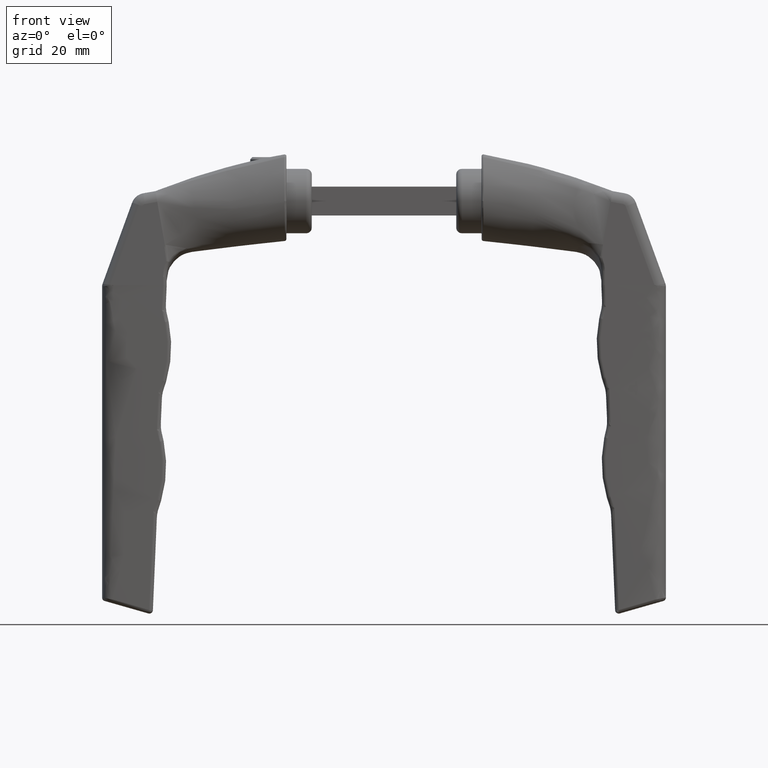
[diagram: clean part render]
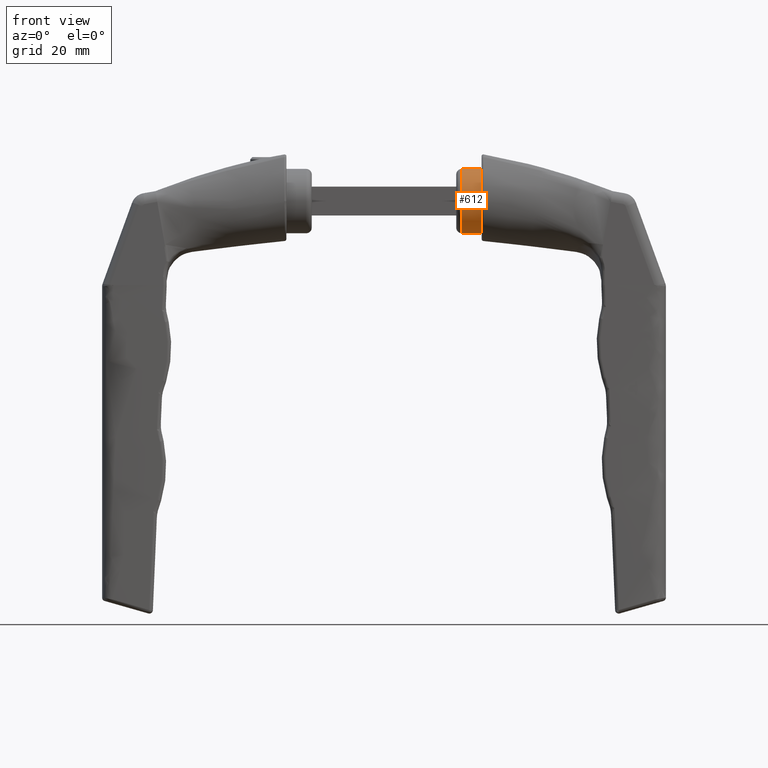
[diagram: same view with one face highlighted and labeled with its STEP entity id]
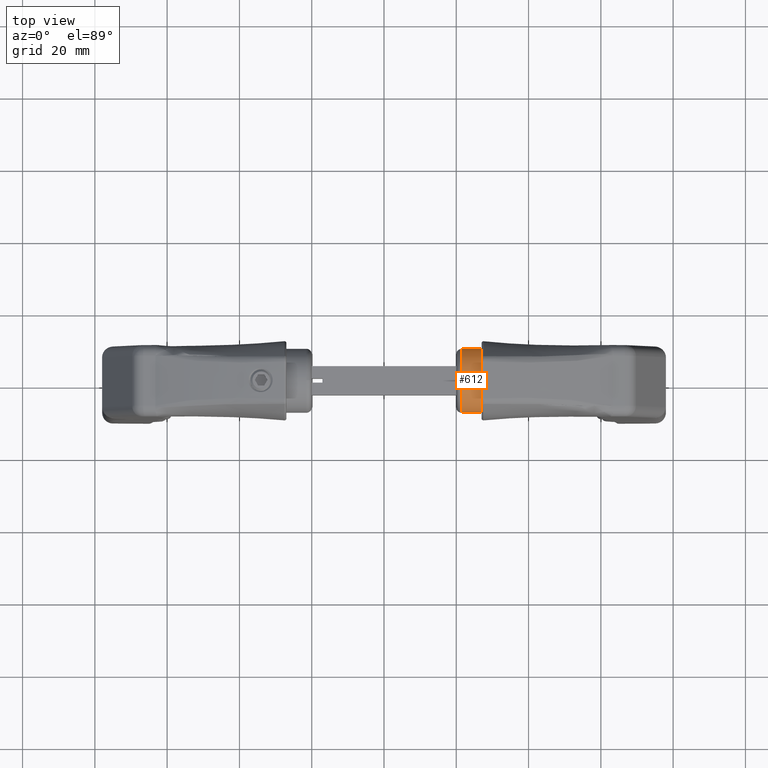
[diagram: same view with one face highlighted and labeled with its STEP entity id]
A machine part, front view. The second image highlights one B-rep face of the part: STEP entity #612.
A second angle (top view) of the same face is appended — the face is thin or edge-on in the first view.
In plain terms, the highlighted cylindrical surface (bore or boss wall) has radius 8.9 mm, axis along (1, 0, 0).
Its self-contained STEP definition (entity closure, byte-faithful):
#120 = EDGE_LOOP ( 'NONE', ( #7853 ) ) ;
#612 = ADVANCED_FACE ( 'NONE', ( #13076, #15315 ), #3562, .T. ) ;
#975 = ORIENTED_EDGE ( 'NONE', *, *, #3080, .T. ) ;
#1760 = DIRECTION ( 'NONE',  ( -1.000000000000000000, 0.000000000000000000, 0.000000000000000000 ) ) ;
#2891 = DIRECTION ( 'NONE',  ( -0.000000000000000000, -0.000000000000000000, 1.000000000000000000 ) ) ;
#2949 = CARTESIAN_POINT ( 'NONE',  ( 8.900000000000000355, 0.000000000000000000, 5.500000000000001776 ) ) ;
#3080 = EDGE_CURVE ( 'NONE', #14375, #14375, #6219, .T. ) ;
#3420 = EDGE_LOOP ( 'NONE', ( #975 ) ) ;
#3562 = CYLINDRICAL_SURFACE ( 'NONE', #11240, 8.900000000000000355 ) ;
#4218 = AXIS2_PLACEMENT_3D ( 'NONE', #10562, #12779, #5509 ) ;
#4853 = DIRECTION ( 'NONE',  ( 0.000000000000000000, 0.000000000000000000, -1.000000000000000000 ) ) ;
#5261 = CARTESIAN_POINT ( 'NONE',  ( -8.900000000000000355, 0.000000000000000000, 0.09999999999999939493 ) ) ;
#5509 = DIRECTION ( 'NONE',  ( 1.000000000000000000, 0.000000000000000000, 0.000000000000000000 ) ) ;
#6219 = CIRCLE ( 'NONE', #4218, 8.900000000000000355 ) ;
#7841 = EDGE_CURVE ( 'NONE', #13223, #13223, #12541, .T. ) ;
#7853 = ORIENTED_EDGE ( 'NONE', *, *, #7841, .T. ) ;
#8525 = CARTESIAN_POINT ( 'NONE',  ( 0.000000000000000000, 0.000000000000000000, 6.999999999999999112 ) ) ;
#9662 = DIRECTION ( 'NONE',  ( -1.000000000000000000, 0.000000000000000000, 0.000000000000000000 ) ) ;
#10562 = CARTESIAN_POINT ( 'NONE',  ( 0.000000000000000000, 0.000000000000000000, 5.500000000000001776 ) ) ;
#11240 = AXIS2_PLACEMENT_3D ( 'NONE', #8525, #4853, #9662 ) ;
#12541 = CIRCLE ( 'NONE', #15750, 8.900000000000000355 ) ;
#12584 = CARTESIAN_POINT ( 'NONE',  ( 0.000000000000000000, 0.000000000000000000, 0.09999999999999939493 ) ) ;
#12779 = DIRECTION ( 'NONE',  ( -0.000000000000000000, -0.000000000000000000, -1.000000000000000000 ) ) ;
#13076 = FACE_OUTER_BOUND ( 'NONE', #120, .T. ) ;
#13223 = VERTEX_POINT ( 'NONE', #5261 ) ;
#14375 = VERTEX_POINT ( 'NONE', #2949 ) ;
#15315 = FACE_OUTER_BOUND ( 'NONE', #3420, .T. ) ;
#15750 = AXIS2_PLACEMENT_3D ( 'NONE', #12584, #2891, #1760 ) ;